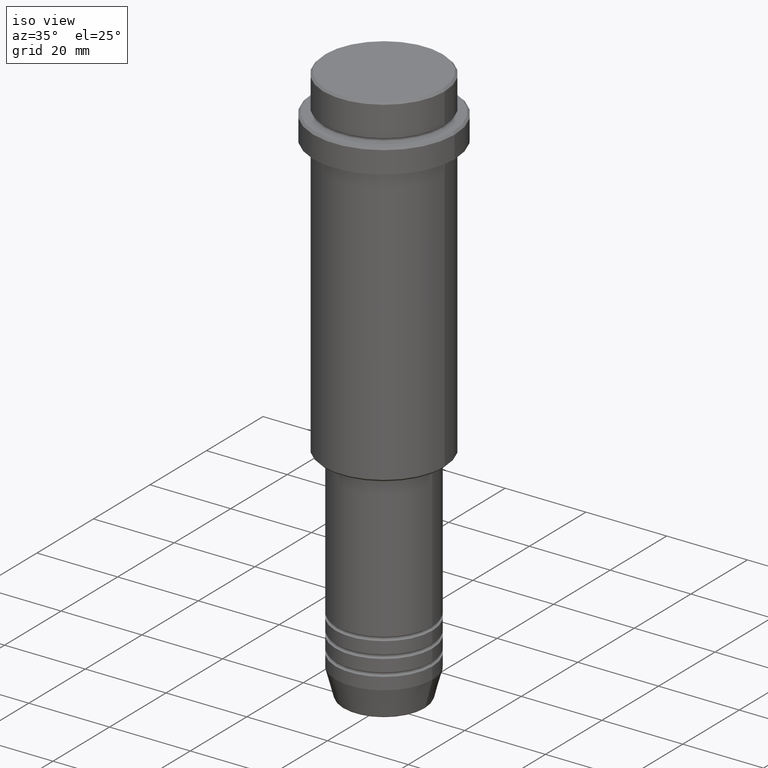
[diagram: clean part render]
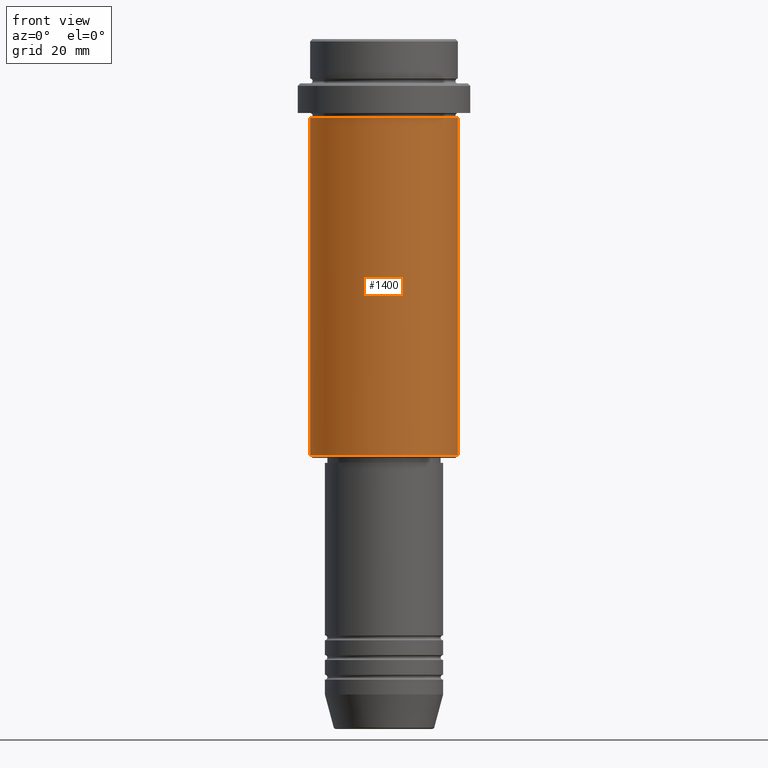
[diagram: tour spotlight — one face highlighted and labeled with its STEP entity id]
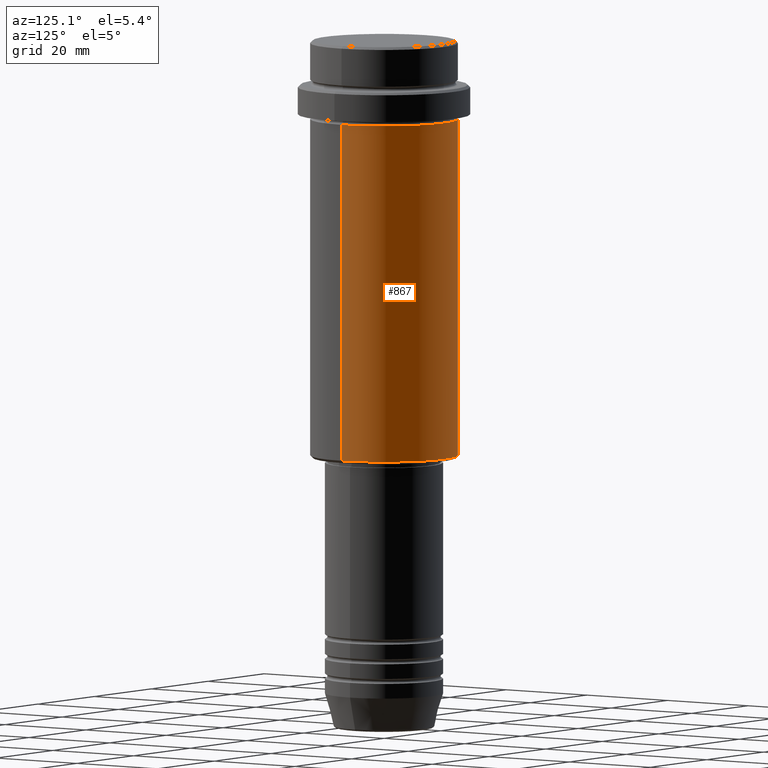
[diagram: tour spotlight — one face highlighted and labeled with its STEP entity id]
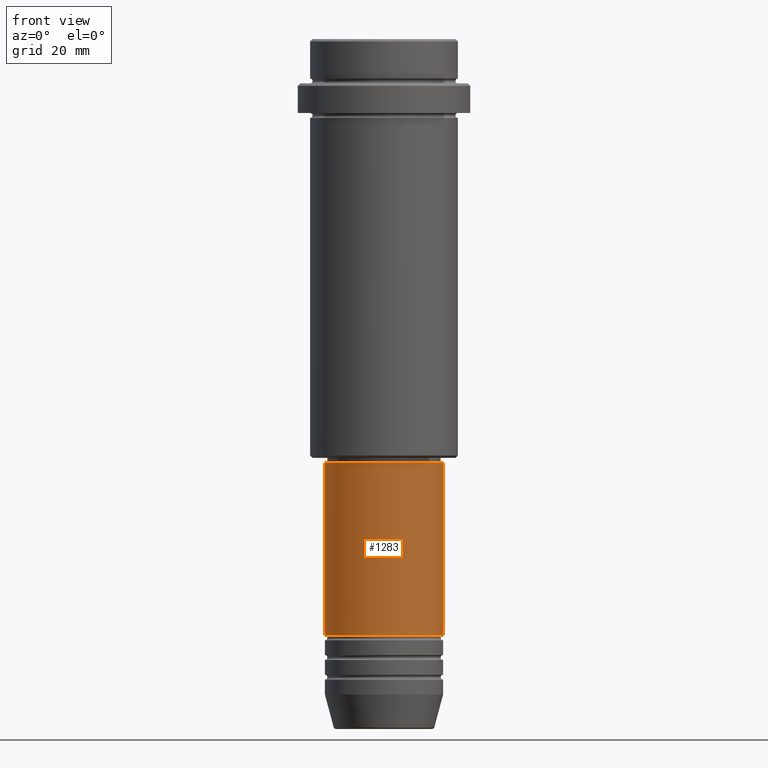
[diagram: tour spotlight — one face highlighted and labeled with its STEP entity id]
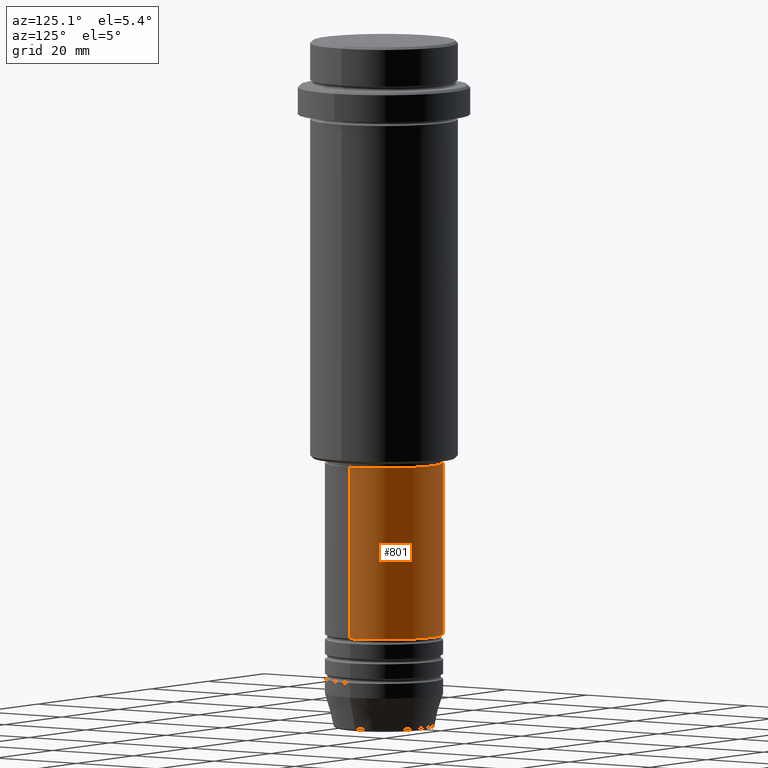
[diagram: tour spotlight — one face highlighted and labeled with its STEP entity id]
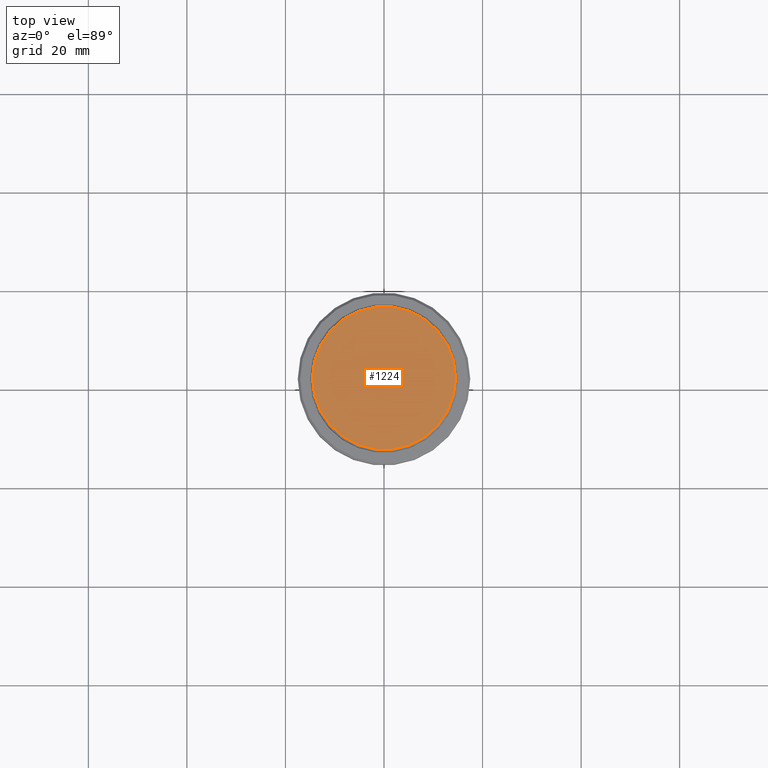
[diagram: tour spotlight — one face highlighted and labeled with its STEP entity id]
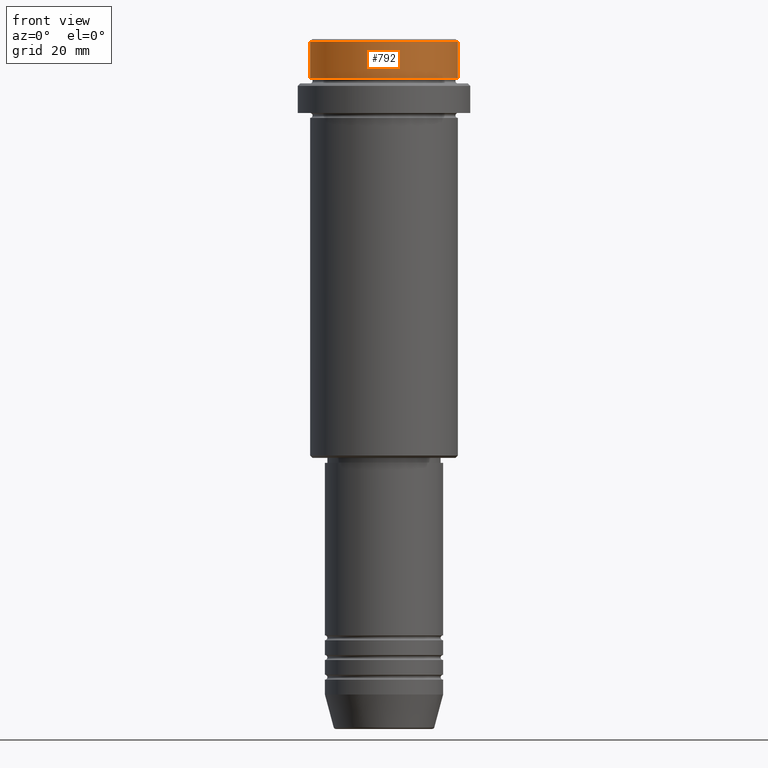
[diagram: tour spotlight — one face highlighted and labeled with its STEP entity id]
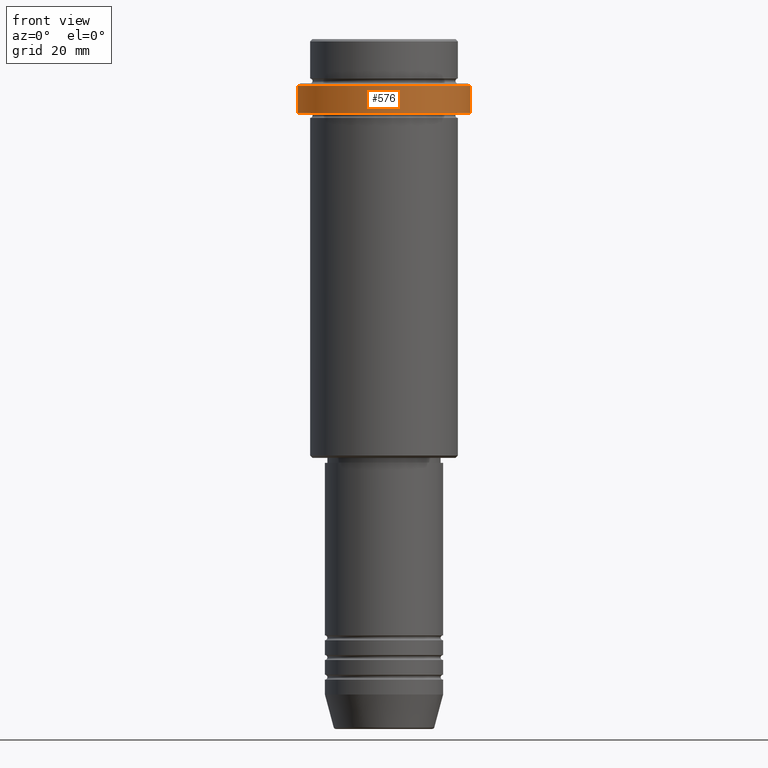
[diagram: tour spotlight — one face highlighted and labeled with its STEP entity id]
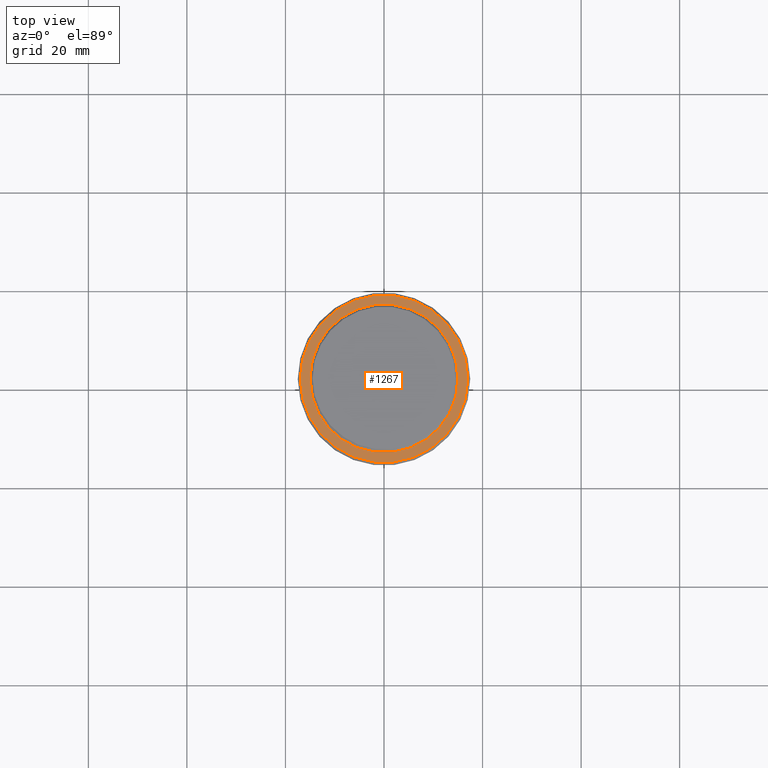
[diagram: tour spotlight — one face highlighted and labeled with its STEP entity id]
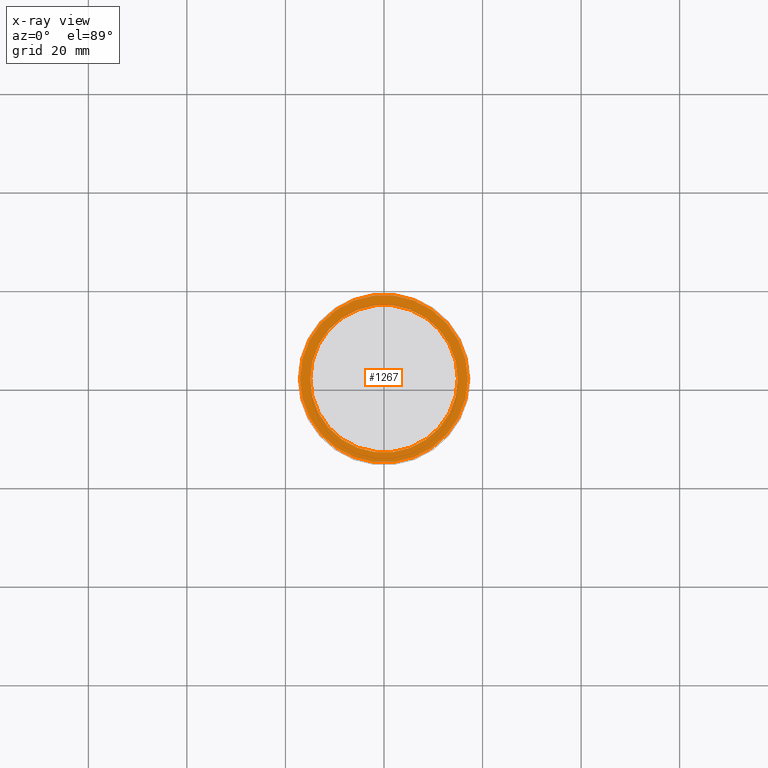
[diagram: x-ray of the same camera — body ghosted, this tour face saturated]
A machine part: a face-by-face anatomy tour. The part has 52 B-rep faces; the first image is the clean iso view, then the 8 largest visible faces are spotlighted one at a time (largest first), each with its STEP entity span.

Face 1 — front view, entity #1400. In plain terms, the highlighted cylindrical surface (partial cylindrical patch) has radius 15 mm, axis along (-0, -0, 1).
Definition (entity closure, byte-faithful):
#32 = VERTEX_POINT ( 'NONE', #945 ) ;
#52 = CYLINDRICAL_SURFACE ( 'NONE', #334, 15.00000000000000000 ) ;
#127 = CIRCLE ( 'NONE', #542, 15.00000000000000178 ) ;
#144 = VERTEX_POINT ( 'NONE', #1383 ) ;
#172 = LINE ( 'NONE', #807, #635 ) ;
#189 = DIRECTION ( 'NONE',  ( -0.000000000000000000, -0.000000000000000000, 1.000000000000000000 ) ) ;
#198 = ORIENTED_EDGE ( 'NONE', *, *, #920, .T. ) ;
#214 = ORIENTED_EDGE ( 'NONE', *, *, #495, .F. ) ;
#282 = LINE ( 'NONE', #627, #660 ) ;
#285 = CIRCLE ( 'NONE', #882, 15.00000000000000000 ) ;
#334 = AXIS2_PLACEMENT_3D ( 'NONE', #1378, #514, #519 ) ;
#372 = FACE_OUTER_BOUND ( 'NONE', #412, .T. ) ;
#407 = CARTESIAN_POINT ( 'NONE',  ( 0.000000000000000000, 0.000000000000000000, -84.50000000000001421 ) ) ;
#412 = EDGE_LOOP ( 'NONE', ( #1004, #698, #198, #214 ) ) ;
#422 = EDGE_CURVE ( 'NONE', #1173, #32, #172, .T. ) ;
#458 = DIRECTION ( 'NONE',  ( -1.000000000000000000, 0.000000000000000000, 0.000000000000000000 ) ) ;
#495 = EDGE_CURVE ( 'NONE', #32, #144, #127, .T. ) ;
#514 = DIRECTION ( 'NONE',  ( -0.000000000000000000, -0.000000000000000000, 1.000000000000000000 ) ) ;
#519 = DIRECTION ( 'NONE',  ( 1.000000000000000000, 0.000000000000000000, 0.000000000000000000 ) ) ;
#533 = VERTEX_POINT ( 'NONE', #1374 ) ;
#542 = AXIS2_PLACEMENT_3D ( 'NONE', #1379, #1154, #1051 ) ;
#584 = EDGE_CURVE ( 'NONE', #1173, #533, #285, .T. ) ;
#627 = CARTESIAN_POINT ( 'NONE',  ( 15.00000000000000000, 0.000000000000000000, 0.000000000000000000 ) ) ;
#635 = VECTOR ( 'NONE', #950, 1000.000000000000000 ) ;
#660 = VECTOR ( 'NONE', #189, 1000.000000000000000 ) ;
#698 = ORIENTED_EDGE ( 'NONE', *, *, #584, .T. ) ;
#807 = CARTESIAN_POINT ( 'NONE',  ( -15.00000000000000000, 1.836970198721029589E-15, 0.000000000000000000 ) ) ;
#882 = AXIS2_PLACEMENT_3D ( 'NONE', #407, #1101, #458 ) ;
#920 = EDGE_CURVE ( 'NONE', #533, #144, #282, .T. ) ;
#945 = CARTESIAN_POINT ( 'NONE',  ( -15.00000000000000355, 1.836970198721029983E-15, -16.00000000000000000 ) ) ;
#950 = DIRECTION ( 'NONE',  ( -0.000000000000000000, -0.000000000000000000, 1.000000000000000000 ) ) ;
#1004 = ORIENTED_EDGE ( 'NONE', *, *, #422, .F. ) ;
#1051 = DIRECTION ( 'NONE',  ( 1.000000000000000000, 0.000000000000000000, 0.000000000000000000 ) ) ;
#1101 = DIRECTION ( 'NONE',  ( -0.000000000000000000, -0.000000000000000000, 1.000000000000000000 ) ) ;
#1154 = DIRECTION ( 'NONE',  ( -0.000000000000000000, -0.000000000000000000, 1.000000000000000000 ) ) ;
#1173 = VERTEX_POINT ( 'NONE', #1408 ) ;
#1374 = CARTESIAN_POINT ( 'NONE',  ( 15.00000000000000000, 0.000000000000000000, -84.50000000000001421 ) ) ;
#1378 = CARTESIAN_POINT ( 'NONE',  ( 0.000000000000000000, 0.000000000000000000, 0.000000000000000000 ) ) ;
#1379 = CARTESIAN_POINT ( 'NONE',  ( 0.000000000000000000, 0.000000000000000000, -16.00000000000000000 ) ) ;
#1383 = CARTESIAN_POINT ( 'NONE',  ( 15.00000000000000178, 0.000000000000000000, -16.00000000000000000 ) ) ;
#1400 = ADVANCED_FACE ( 'NONE', ( #372 ), #52, .T. ) ;
#1408 = CARTESIAN_POINT ( 'NONE',  ( -15.00000000000000000, 1.836970198721029589E-15, -84.50000000000001421 ) ) ;

Face 2 — auxiliary view, entity #867. In plain terms, the highlighted cylindrical surface (partial cylindrical patch) has radius 15 mm, axis along (-0, -0, 1).
Definition (entity closure, byte-faithful):
#32 = VERTEX_POINT ( 'NONE', #945 ) ;
#81 = DIRECTION ( 'NONE',  ( 1.000000000000000000, 0.000000000000000000, 0.000000000000000000 ) ) ;
#144 = VERTEX_POINT ( 'NONE', #1383 ) ;
#157 = CARTESIAN_POINT ( 'NONE',  ( 0.000000000000000000, 0.000000000000000000, -84.50000000000001421 ) ) ;
#172 = LINE ( 'NONE', #807, #635 ) ;
#189 = DIRECTION ( 'NONE',  ( -0.000000000000000000, -0.000000000000000000, 1.000000000000000000 ) ) ;
#275 = ORIENTED_EDGE ( 'NONE', *, *, #622, .F. ) ;
#282 = LINE ( 'NONE', #627, #660 ) ;
#418 = DIRECTION ( 'NONE',  ( 1.000000000000000000, 0.000000000000000000, 0.000000000000000000 ) ) ;
#422 = EDGE_CURVE ( 'NONE', #1173, #32, #172, .T. ) ;
#486 = FACE_OUTER_BOUND ( 'NONE', #1178, .T. ) ;
#533 = VERTEX_POINT ( 'NONE', #1374 ) ;
#622 = EDGE_CURVE ( 'NONE', #144, #32, #881, .T. ) ;
#627 = CARTESIAN_POINT ( 'NONE',  ( 15.00000000000000000, 0.000000000000000000, 0.000000000000000000 ) ) ;
#635 = VECTOR ( 'NONE', #950, 1000.000000000000000 ) ;
#660 = VECTOR ( 'NONE', #189, 1000.000000000000000 ) ;
#688 = DIRECTION ( 'NONE',  ( -0.000000000000000000, -0.000000000000000000, 1.000000000000000000 ) ) ;
#708 = AXIS2_PLACEMENT_3D ( 'NONE', #1059, #750, #418 ) ;
#746 = EDGE_CURVE ( 'NONE', #533, #1173, #955, .T. ) ;
#750 = DIRECTION ( 'NONE',  ( -0.000000000000000000, -0.000000000000000000, 1.000000000000000000 ) ) ;
#807 = CARTESIAN_POINT ( 'NONE',  ( -15.00000000000000000, 1.836970198721029589E-15, 0.000000000000000000 ) ) ;
#867 = ADVANCED_FACE ( 'NONE', ( #486 ), #1350, .T. ) ;
#881 = CIRCLE ( 'NONE', #1110, 15.00000000000000178 ) ;
#920 = EDGE_CURVE ( 'NONE', #533, #144, #282, .T. ) ;
#945 = CARTESIAN_POINT ( 'NONE',  ( -15.00000000000000355, 1.836970198721029983E-15, -16.00000000000000000 ) ) ;
#950 = DIRECTION ( 'NONE',  ( -0.000000000000000000, -0.000000000000000000, 1.000000000000000000 ) ) ;
#955 = CIRCLE ( 'NONE', #1131, 15.00000000000000000 ) ;
#1014 = ORIENTED_EDGE ( 'NONE', *, *, #746, .T. ) ;
#1026 = ORIENTED_EDGE ( 'NONE', *, *, #422, .T. ) ;
#1059 = CARTESIAN_POINT ( 'NONE',  ( 0.000000000000000000, 0.000000000000000000, 0.000000000000000000 ) ) ;
#1082 = ORIENTED_EDGE ( 'NONE', *, *, #920, .F. ) ;
#1110 = AXIS2_PLACEMENT_3D ( 'NONE', #1391, #1323, #81 ) ;
#1131 = AXIS2_PLACEMENT_3D ( 'NONE', #157, #688, #1228 ) ;
#1173 = VERTEX_POINT ( 'NONE', #1408 ) ;
#1178 = EDGE_LOOP ( 'NONE', ( #1014, #1026, #275, #1082 ) ) ;
#1228 = DIRECTION ( 'NONE',  ( -1.000000000000000000, 0.000000000000000000, 0.000000000000000000 ) ) ;
#1323 = DIRECTION ( 'NONE',  ( -0.000000000000000000, -0.000000000000000000, 1.000000000000000000 ) ) ;
#1350 = CYLINDRICAL_SURFACE ( 'NONE', #708, 15.00000000000000000 ) ;
#1374 = CARTESIAN_POINT ( 'NONE',  ( 15.00000000000000000, 0.000000000000000000, -84.50000000000001421 ) ) ;
#1383 = CARTESIAN_POINT ( 'NONE',  ( 15.00000000000000178, 0.000000000000000000, -16.00000000000000000 ) ) ;
#1391 = CARTESIAN_POINT ( 'NONE',  ( 0.000000000000000000, 0.000000000000000000, -16.00000000000000000 ) ) ;
#1408 = CARTESIAN_POINT ( 'NONE',  ( -15.00000000000000000, 1.836970198721029589E-15, -84.50000000000001421 ) ) ;

Face 3 — front view, entity #1283. In plain terms, the highlighted cylindrical surface (partial cylindrical patch) has radius 12 mm, axis along (-0, -0, 1).
Definition (entity closure, byte-faithful):
#135 = DIRECTION ( 'NONE',  ( 1.000000000000000000, 0.000000000000000000, 0.000000000000000000 ) ) ;
#289 = CIRCLE ( 'NONE', #1089, 12.00000000000000000 ) ;
#321 = DIRECTION ( 'NONE',  ( 1.000000000000000000, 0.000000000000000000, 0.000000000000000000 ) ) ;
#353 = FACE_OUTER_BOUND ( 'NONE', #538, .T. ) ;
#359 = AXIS2_PLACEMENT_3D ( 'NONE', #797, #473, #135 ) ;
#366 = DIRECTION ( 'NONE',  ( -0.000000000000000000, -0.000000000000000000, 1.000000000000000000 ) ) ;
#367 = EDGE_CURVE ( 'NONE', #811, #1394, #1123, .T. ) ;
#389 = ORIENTED_EDGE ( 'NONE', *, *, #367, .T. ) ;
#397 = CARTESIAN_POINT ( 'NONE',  ( 11.99999999999999822, 0.000000000000000000, -86.00000000000001421 ) ) ;
#459 = VECTOR ( 'NONE', #1353, 1000.000000000000000 ) ;
#473 = DIRECTION ( 'NONE',  ( -0.000000000000000000, -0.000000000000000000, 1.000000000000000000 ) ) ;
#512 = VERTEX_POINT ( 'NONE', #1130 ) ;
#538 = EDGE_LOOP ( 'NONE', ( #1119, #789, #389, #727 ) ) ;
#575 = DIRECTION ( 'NONE',  ( -0.000000000000000000, -0.000000000000000000, 1.000000000000000000 ) ) ;
#585 = CARTESIAN_POINT ( 'NONE',  ( 12.00000000000000000, 0.000000000000000000, 0.000000000000000000 ) ) ;
#661 = CIRCLE ( 'NONE', #910, 11.99999999999999822 ) ;
#685 = CARTESIAN_POINT ( 'NONE',  ( -12.00000000000000000, 1.469576158976823947E-15, 0.000000000000000000 ) ) ;
#692 = DIRECTION ( 'NONE',  ( 1.000000000000000000, 0.000000000000000000, 0.000000000000000000 ) ) ;
#727 = ORIENTED_EDGE ( 'NONE', *, *, #1293, .F. ) ;
#789 = ORIENTED_EDGE ( 'NONE', *, *, #1163, .T. ) ;
#797 = CARTESIAN_POINT ( 'NONE',  ( 0.000000000000000000, 0.000000000000000000, 0.000000000000000000 ) ) ;
#809 = LINE ( 'NONE', #685, #459 ) ;
#811 = VERTEX_POINT ( 'NONE', #812 ) ;
#812 = CARTESIAN_POINT ( 'NONE',  ( 12.00000000000000000, 0.000000000000000000, -120.9999999999999005 ) ) ;
#853 = CARTESIAN_POINT ( 'NONE',  ( -12.00000000000000000, 1.469576158976823947E-15, -120.9999999999999005 ) ) ;
#910 = AXIS2_PLACEMENT_3D ( 'NONE', #1226, #575, #692 ) ;
#928 = VECTOR ( 'NONE', #366, 1000.000000000000000 ) ;
#940 = VERTEX_POINT ( 'NONE', #853 ) ;
#1089 = AXIS2_PLACEMENT_3D ( 'NONE', #1296, #1415, #321 ) ;
#1114 = CYLINDRICAL_SURFACE ( 'NONE', #359, 12.00000000000000000 ) ;
#1119 = ORIENTED_EDGE ( 'NONE', *, *, #1230, .F. ) ;
#1123 = LINE ( 'NONE', #585, #928 ) ;
#1130 = CARTESIAN_POINT ( 'NONE',  ( -11.99999999999999822, 1.469576158976823750E-15, -86.00000000000001421 ) ) ;
#1163 = EDGE_CURVE ( 'NONE', #940, #811, #289, .T. ) ;
#1226 = CARTESIAN_POINT ( 'NONE',  ( 0.000000000000000000, 0.000000000000000000, -86.00000000000001421 ) ) ;
#1230 = EDGE_CURVE ( 'NONE', #940, #512, #809, .T. ) ;
#1283 = ADVANCED_FACE ( 'NONE', ( #353 ), #1114, .T. ) ;
#1293 = EDGE_CURVE ( 'NONE', #512, #1394, #661, .T. ) ;
#1296 = CARTESIAN_POINT ( 'NONE',  ( 0.000000000000000000, 0.000000000000000000, -120.9999999999999005 ) ) ;
#1353 = DIRECTION ( 'NONE',  ( -0.000000000000000000, -0.000000000000000000, 1.000000000000000000 ) ) ;
#1394 = VERTEX_POINT ( 'NONE', #397 ) ;
#1415 = DIRECTION ( 'NONE',  ( -0.000000000000000000, -0.000000000000000000, 1.000000000000000000 ) ) ;

Face 4 — auxiliary view, entity #801. In plain terms, the highlighted cylindrical surface (partial cylindrical patch) has radius 12 mm, axis along (-0, -0, 1).
Definition (entity closure, byte-faithful):
#9 = ORIENTED_EDGE ( 'NONE', *, *, #367, .F. ) ;
#26 = DIRECTION ( 'NONE',  ( 1.000000000000000000, 0.000000000000000000, 0.000000000000000000 ) ) ;
#147 = CARTESIAN_POINT ( 'NONE',  ( 0.000000000000000000, 0.000000000000000000, 0.000000000000000000 ) ) ;
#249 = CARTESIAN_POINT ( 'NONE',  ( 0.000000000000000000, 0.000000000000000000, -120.9999999999999005 ) ) ;
#260 = CYLINDRICAL_SURFACE ( 'NONE', #287, 12.00000000000000000 ) ;
#287 = AXIS2_PLACEMENT_3D ( 'NONE', #147, #790, #1127 ) ;
#304 = AXIS2_PLACEMENT_3D ( 'NONE', #570, #333, #324 ) ;
#324 = DIRECTION ( 'NONE',  ( 1.000000000000000000, 0.000000000000000000, 0.000000000000000000 ) ) ;
#333 = DIRECTION ( 'NONE',  ( -0.000000000000000000, -0.000000000000000000, 1.000000000000000000 ) ) ;
#361 = EDGE_CURVE ( 'NONE', #811, #940, #840, .T. ) ;
#366 = DIRECTION ( 'NONE',  ( -0.000000000000000000, -0.000000000000000000, 1.000000000000000000 ) ) ;
#367 = EDGE_CURVE ( 'NONE', #811, #1394, #1123, .T. ) ;
#397 = CARTESIAN_POINT ( 'NONE',  ( 11.99999999999999822, 0.000000000000000000, -86.00000000000001421 ) ) ;
#459 = VECTOR ( 'NONE', #1353, 1000.000000000000000 ) ;
#477 = FACE_OUTER_BOUND ( 'NONE', #737, .T. ) ;
#499 = ORIENTED_EDGE ( 'NONE', *, *, #646, .F. ) ;
#512 = VERTEX_POINT ( 'NONE', #1130 ) ;
#570 = CARTESIAN_POINT ( 'NONE',  ( 0.000000000000000000, 0.000000000000000000, -86.00000000000001421 ) ) ;
#585 = CARTESIAN_POINT ( 'NONE',  ( 12.00000000000000000, 0.000000000000000000, 0.000000000000000000 ) ) ;
#646 = EDGE_CURVE ( 'NONE', #1394, #512, #1243, .T. ) ;
#685 = CARTESIAN_POINT ( 'NONE',  ( -12.00000000000000000, 1.469576158976823947E-15, 0.000000000000000000 ) ) ;
#737 = EDGE_LOOP ( 'NONE', ( #986, #1349, #499, #9 ) ) ;
#752 = AXIS2_PLACEMENT_3D ( 'NONE', #249, #781, #26 ) ;
#781 = DIRECTION ( 'NONE',  ( -0.000000000000000000, -0.000000000000000000, 1.000000000000000000 ) ) ;
#790 = DIRECTION ( 'NONE',  ( -0.000000000000000000, -0.000000000000000000, 1.000000000000000000 ) ) ;
#801 = ADVANCED_FACE ( 'NONE', ( #477 ), #260, .T. ) ;
#809 = LINE ( 'NONE', #685, #459 ) ;
#811 = VERTEX_POINT ( 'NONE', #812 ) ;
#812 = CARTESIAN_POINT ( 'NONE',  ( 12.00000000000000000, 0.000000000000000000, -120.9999999999999005 ) ) ;
#840 = CIRCLE ( 'NONE', #752, 12.00000000000000000 ) ;
#853 = CARTESIAN_POINT ( 'NONE',  ( -12.00000000000000000, 1.469576158976823947E-15, -120.9999999999999005 ) ) ;
#928 = VECTOR ( 'NONE', #366, 1000.000000000000000 ) ;
#940 = VERTEX_POINT ( 'NONE', #853 ) ;
#986 = ORIENTED_EDGE ( 'NONE', *, *, #361, .T. ) ;
#1123 = LINE ( 'NONE', #585, #928 ) ;
#1127 = DIRECTION ( 'NONE',  ( 1.000000000000000000, 0.000000000000000000, 0.000000000000000000 ) ) ;
#1130 = CARTESIAN_POINT ( 'NONE',  ( -11.99999999999999822, 1.469576158976823750E-15, -86.00000000000001421 ) ) ;
#1230 = EDGE_CURVE ( 'NONE', #940, #512, #809, .T. ) ;
#1243 = CIRCLE ( 'NONE', #304, 11.99999999999999822 ) ;
#1349 = ORIENTED_EDGE ( 'NONE', *, *, #1230, .T. ) ;
#1353 = DIRECTION ( 'NONE',  ( -0.000000000000000000, -0.000000000000000000, 1.000000000000000000 ) ) ;
#1394 = VERTEX_POINT ( 'NONE', #397 ) ;

Face 5 — top view, entity #1224. In plain terms, the highlighted planar face has unit normal (0, -0, 1).
Definition (entity closure, byte-faithful):
#43 = FACE_OUTER_BOUND ( 'NONE', #1401, .T. ) ;
#96 = DIRECTION ( 'NONE',  ( 1.000000000000000000, 0.000000000000000000, 0.000000000000000000 ) ) ;
#217 = EDGE_CURVE ( 'NONE', #1185, #558, #1063, .T. ) ;
#225 = CARTESIAN_POINT ( 'NONE',  ( -14.49999999999999645, 0.000000000000000000, 0.000000000000000000 ) ) ;
#251 = DIRECTION ( 'NONE',  ( 0.000000000000000000, -0.000000000000000000, 1.000000000000000000 ) ) ;
#421 = DIRECTION ( 'NONE',  ( 1.000000000000000000, 0.000000000000000000, 0.000000000000000000 ) ) ;
#504 = CIRCLE ( 'NONE', #1067, 14.49999999999999645 ) ;
#535 = ORIENTED_EDGE ( 'NONE', *, *, #1045, .T. ) ;
#558 = VERTEX_POINT ( 'NONE', #712 ) ;
#599 = DIRECTION ( 'NONE',  ( 1.000000000000000000, 0.000000000000000000, 0.000000000000000000 ) ) ;
#607 = ORIENTED_EDGE ( 'NONE', *, *, #217, .T. ) ;
#712 = CARTESIAN_POINT ( 'NONE',  ( 14.49999999999999645, 1.806354028742345802E-15, 0.000000000000000000 ) ) ;
#762 = DIRECTION ( 'NONE',  ( -0.000000000000000000, -0.000000000000000000, 1.000000000000000000 ) ) ;
#769 = DIRECTION ( 'NONE',  ( -0.000000000000000000, -0.000000000000000000, 1.000000000000000000 ) ) ;
#804 = PLANE ( 'NONE',  #1001 ) ;
#876 = CARTESIAN_POINT ( 'NONE',  ( 0.000000000000000000, 0.000000000000000000, 0.000000000000000000 ) ) ;
#965 = CARTESIAN_POINT ( 'NONE',  ( 0.000000000000000000, 0.000000000000000000, 0.000000000000000000 ) ) ;
#1001 = AXIS2_PLACEMENT_3D ( 'NONE', #1105, #251, #599 ) ;
#1045 = EDGE_CURVE ( 'NONE', #558, #1185, #504, .T. ) ;
#1063 = CIRCLE ( 'NONE', #1382, 14.49999999999999645 ) ;
#1067 = AXIS2_PLACEMENT_3D ( 'NONE', #876, #769, #96 ) ;
#1105 = CARTESIAN_POINT ( 'NONE',  ( 0.000000000000000000, 0.000000000000000000, 0.000000000000000000 ) ) ;
#1185 = VERTEX_POINT ( 'NONE', #225 ) ;
#1224 = ADVANCED_FACE ( 'NONE', ( #43 ), #804, .T. ) ;
#1382 = AXIS2_PLACEMENT_3D ( 'NONE', #965, #762, #421 ) ;
#1401 = EDGE_LOOP ( 'NONE', ( #607, #535 ) ) ;

Face 6 — front view, entity #792. In plain terms, the highlighted cylindrical surface (partial cylindrical patch) has radius 15 mm, axis along (-0, -0, 1).
Definition (entity closure, byte-faithful):
#25 = CARTESIAN_POINT ( 'NONE',  ( 0.000000000000000000, 0.000000000000000000, 0.000000000000000000 ) ) ;
#95 = ORIENTED_EDGE ( 'NONE', *, *, #1084, .F. ) ;
#102 = CARTESIAN_POINT ( 'NONE',  ( 0.000000000000000000, 0.000000000000000000, -7.999999999999998224 ) ) ;
#158 = EDGE_CURVE ( 'NONE', #485, #395, #713, .T. ) ;
#222 = AXIS2_PLACEMENT_3D ( 'NONE', #382, #1259, #1242 ) ;
#223 = CARTESIAN_POINT ( 'NONE',  ( 15.00000000000000000, 0.000000000000000000, -0.4999999999999970024 ) ) ;
#239 = VECTOR ( 'NONE', #815, 1000.000000000000000 ) ;
#270 = DIRECTION ( 'NONE',  ( 1.000000000000000000, 0.000000000000000000, 0.000000000000000000 ) ) ;
#306 = VECTOR ( 'NONE', #764, 1000.000000000000000 ) ;
#382 = CARTESIAN_POINT ( 'NONE',  ( 0.000000000000000000, 0.000000000000000000, -0.4999999999999970024 ) ) ;
#395 = VERTEX_POINT ( 'NONE', #223 ) ;
#408 = AXIS2_PLACEMENT_3D ( 'NONE', #102, #440, #663 ) ;
#440 = DIRECTION ( 'NONE',  ( -0.000000000000000000, -0.000000000000000000, 1.000000000000000000 ) ) ;
#446 = VERTEX_POINT ( 'NONE', #734 ) ;
#447 = CARTESIAN_POINT ( 'NONE',  ( -15.00000000000000000, 1.836970198721029589E-15, 0.000000000000000000 ) ) ;
#485 = VERTEX_POINT ( 'NONE', #1056 ) ;
#663 = DIRECTION ( 'NONE',  ( 1.000000000000000000, 0.000000000000000000, 0.000000000000000000 ) ) ;
#686 = AXIS2_PLACEMENT_3D ( 'NONE', #25, #694, #270 ) ;
#694 = DIRECTION ( 'NONE',  ( -0.000000000000000000, -0.000000000000000000, 1.000000000000000000 ) ) ;
#713 = LINE ( 'NONE', #921, #239 ) ;
#734 = CARTESIAN_POINT ( 'NONE',  ( -15.00000000000000000, 1.836970198721029589E-15, -7.999999999999998224 ) ) ;
#764 = DIRECTION ( 'NONE',  ( -0.000000000000000000, -0.000000000000000000, 1.000000000000000000 ) ) ;
#792 = ADVANCED_FACE ( 'NONE', ( #1012 ), #820, .T. ) ;
#815 = DIRECTION ( 'NONE',  ( -0.000000000000000000, -0.000000000000000000, 1.000000000000000000 ) ) ;
#816 = CARTESIAN_POINT ( 'NONE',  ( -15.00000000000000000, 1.836970198721029589E-15, -0.4999999999999970024 ) ) ;
#820 = CYLINDRICAL_SURFACE ( 'NONE', #686, 15.00000000000000000 ) ;
#875 = ORIENTED_EDGE ( 'NONE', *, *, #1028, .T. ) ;
#892 = EDGE_LOOP ( 'NONE', ( #95, #875, #1124, #1262 ) ) ;
#921 = CARTESIAN_POINT ( 'NONE',  ( 15.00000000000000000, 0.000000000000000000, 0.000000000000000000 ) ) ;
#936 = CIRCLE ( 'NONE', #222, 15.00000000000000000 ) ;
#1012 = FACE_OUTER_BOUND ( 'NONE', #892, .T. ) ;
#1028 = EDGE_CURVE ( 'NONE', #446, #485, #1360, .T. ) ;
#1056 = CARTESIAN_POINT ( 'NONE',  ( 15.00000000000000000, 0.000000000000000000, -7.999999999999998224 ) ) ;
#1084 = EDGE_CURVE ( 'NONE', #446, #1233, #1093, .T. ) ;
#1093 = LINE ( 'NONE', #447, #306 ) ;
#1124 = ORIENTED_EDGE ( 'NONE', *, *, #158, .T. ) ;
#1233 = VERTEX_POINT ( 'NONE', #816 ) ;
#1242 = DIRECTION ( 'NONE',  ( 1.000000000000000000, 0.000000000000000000, 0.000000000000000000 ) ) ;
#1259 = DIRECTION ( 'NONE',  ( 0.000000000000000000, 0.000000000000000000, -1.000000000000000000 ) ) ;
#1262 = ORIENTED_EDGE ( 'NONE', *, *, #1371, .T. ) ;
#1360 = CIRCLE ( 'NONE', #408, 15.00000000000000000 ) ;
#1371 = EDGE_CURVE ( 'NONE', #395, #1233, #936, .T. ) ;

Face 7 — front view, entity #576. In plain terms, the highlighted cylindrical surface (partial cylindrical patch) has radius 17.5 mm, axis along (-0, -0, 1).
Definition (entity closure, byte-faithful):
#6 = DIRECTION ( 'NONE',  ( 0.000000000000000000, 0.000000000000000000, -1.000000000000000000 ) ) ;
#14 = DIRECTION ( 'NONE',  ( 1.000000000000000000, 0.000000000000000000, 0.000000000000000000 ) ) ;
#104 = LINE ( 'NONE', #298, #657 ) ;
#126 = DIRECTION ( 'NONE',  ( -0.000000000000000000, -0.000000000000000000, 1.000000000000000000 ) ) ;
#128 = VERTEX_POINT ( 'NONE', #506 ) ;
#151 = AXIS2_PLACEMENT_3D ( 'NONE', #989, #6, #1169 ) ;
#246 = ORIENTED_EDGE ( 'NONE', *, *, #296, .T. ) ;
#296 = EDGE_CURVE ( 'NONE', #128, #1416, #104, .T. ) ;
#298 = CARTESIAN_POINT ( 'NONE',  ( 17.50000000000000000, 0.000000000000000000, 0.000000000000000000 ) ) ;
#364 = ORIENTED_EDGE ( 'NONE', *, *, #736, .T. ) ;
#384 = CIRCLE ( 'NONE', #525, 17.50000000000000000 ) ;
#448 = CARTESIAN_POINT ( 'NONE',  ( -17.50000000000000000, 2.143131898507868248E-15, 0.000000000000000000 ) ) ;
#453 = ORIENTED_EDGE ( 'NONE', *, *, #682, .F. ) ;
#475 = CIRCLE ( 'NONE', #151, 17.50000000000000000 ) ;
#506 = CARTESIAN_POINT ( 'NONE',  ( 17.50000000000000000, 0.000000000000000000, -15.00000000000000000 ) ) ;
#525 = AXIS2_PLACEMENT_3D ( 'NONE', #1030, #126, #567 ) ;
#567 = DIRECTION ( 'NONE',  ( 1.000000000000000000, 0.000000000000000000, 0.000000000000000000 ) ) ;
#576 = ADVANCED_FACE ( 'NONE', ( #679 ), #1212, .T. ) ;
#657 = VECTOR ( 'NONE', #766, 1000.000000000000000 ) ;
#673 = LINE ( 'NONE', #448, #1358 ) ;
#679 = FACE_OUTER_BOUND ( 'NONE', #1161, .T. ) ;
#682 = EDGE_CURVE ( 'NONE', #1038, #1113, #673, .T. ) ;
#736 = EDGE_CURVE ( 'NONE', #1416, #1113, #475, .T. ) ;
#766 = DIRECTION ( 'NONE',  ( -0.000000000000000000, -0.000000000000000000, 1.000000000000000000 ) ) ;
#795 = AXIS2_PLACEMENT_3D ( 'NONE', #1313, #964, #14 ) ;
#844 = DIRECTION ( 'NONE',  ( -0.000000000000000000, -0.000000000000000000, 1.000000000000000000 ) ) ;
#925 = CARTESIAN_POINT ( 'NONE',  ( 17.50000000000000000, 0.000000000000000000, -9.500000000000000000 ) ) ;
#964 = DIRECTION ( 'NONE',  ( -0.000000000000000000, -0.000000000000000000, 1.000000000000000000 ) ) ;
#989 = CARTESIAN_POINT ( 'NONE',  ( 0.000000000000000000, 0.000000000000000000, -9.500000000000000000 ) ) ;
#1030 = CARTESIAN_POINT ( 'NONE',  ( 0.000000000000000000, 0.000000000000000000, -15.00000000000000000 ) ) ;
#1038 = VERTEX_POINT ( 'NONE', #1083 ) ;
#1083 = CARTESIAN_POINT ( 'NONE',  ( -17.50000000000000000, 2.143131898507868248E-15, -15.00000000000000000 ) ) ;
#1113 = VERTEX_POINT ( 'NONE', #1287 ) ;
#1161 = EDGE_LOOP ( 'NONE', ( #453, #1414, #246, #364 ) ) ;
#1169 = DIRECTION ( 'NONE',  ( 1.000000000000000000, 0.000000000000000000, 0.000000000000000000 ) ) ;
#1212 = CYLINDRICAL_SURFACE ( 'NONE', #795, 17.50000000000000000 ) ;
#1252 = EDGE_CURVE ( 'NONE', #1038, #128, #384, .T. ) ;
#1287 = CARTESIAN_POINT ( 'NONE',  ( -17.50000000000000000, 2.143131898507868248E-15, -9.500000000000000000 ) ) ;
#1313 = CARTESIAN_POINT ( 'NONE',  ( 0.000000000000000000, 0.000000000000000000, 0.000000000000000000 ) ) ;
#1358 = VECTOR ( 'NONE', #844, 1000.000000000000000 ) ;
#1414 = ORIENTED_EDGE ( 'NONE', *, *, #1252, .T. ) ;
#1416 = VERTEX_POINT ( 'NONE', #925 ) ;

Face 8 — top view, entity #1267. An x-ray twin of the same camera follows (body ghosted, this face saturated) — the face is partly hidden behind the body. In plain terms, the highlighted planar face has unit normal (0, -0, 1).
Definition (entity closure, byte-faithful):
#27 = ORIENTED_EDGE ( 'NONE', *, *, #1354, .T. ) ;
#39 = AXIS2_PLACEMENT_3D ( 'NONE', #1159, #73, #291 ) ;
#48 = CARTESIAN_POINT ( 'NONE',  ( 0.000000000000000000, 0.000000000000000000, -9.000000000000000000 ) ) ;
#49 = FACE_BOUND ( 'NONE', #461, .T. ) ;
#64 = DIRECTION ( 'NONE',  ( 1.000000000000000000, 0.000000000000000000, 0.000000000000000000 ) ) ;
#69 = CARTESIAN_POINT ( 'NONE',  ( -14.99999999999999289, 1.836970198721028800E-15, -9.000000000000000000 ) ) ;
#73 = DIRECTION ( 'NONE',  ( -0.000000000000000000, -0.000000000000000000, 1.000000000000000000 ) ) ;
#80 = DIRECTION ( 'NONE',  ( 0.000000000000000000, 0.000000000000000000, -1.000000000000000000 ) ) ;
#123 = EDGE_CURVE ( 'NONE', #476, #975, #236, .T. ) ;
#131 = CIRCLE ( 'NONE', #154, 14.99999999999999289 ) ;
#154 = AXIS2_PLACEMENT_3D ( 'NONE', #823, #80, #629 ) ;
#165 = DIRECTION ( 'NONE',  ( -0.000000000000000000, -0.000000000000000000, 1.000000000000000000 ) ) ;
#215 = DIRECTION ( 'NONE',  ( 0.000000000000000000, 0.000000000000000000, -1.000000000000000000 ) ) ;
#236 = CIRCLE ( 'NONE', #1108, 17.00000000000001421 ) ;
#264 = CIRCLE ( 'NONE', #39, 17.00000000000001421 ) ;
#291 = DIRECTION ( 'NONE',  ( 1.000000000000000000, 0.000000000000000000, 0.000000000000000000 ) ) ;
#346 = DIRECTION ( 'NONE',  ( 1.000000000000000000, 0.000000000000000000, 0.000000000000000000 ) ) ;
#432 = AXIS2_PLACEMENT_3D ( 'NONE', #1326, #697, #346 ) ;
#461 = EDGE_LOOP ( 'NONE', ( #27, #1216 ) ) ;
#462 = FACE_OUTER_BOUND ( 'NONE', #1015, .T. ) ;
#476 = VERTEX_POINT ( 'NONE', #618 ) ;
#606 = CARTESIAN_POINT ( 'NONE',  ( 14.99999999999999289, 0.000000000000000000, -9.000000000000000000 ) ) ;
#618 = CARTESIAN_POINT ( 'NONE',  ( 17.00000000000001421, 2.112515728529185250E-15, -9.000000000000000000 ) ) ;
#629 = DIRECTION ( 'NONE',  ( 1.000000000000000000, 0.000000000000000000, 0.000000000000000000 ) ) ;
#697 = DIRECTION ( 'NONE',  ( 0.000000000000000000, -0.000000000000000000, 1.000000000000000000 ) ) ;
#823 = CARTESIAN_POINT ( 'NONE',  ( 0.000000000000000000, 0.000000000000000000, -9.000000000000000000 ) ) ;
#885 = ORIENTED_EDGE ( 'NONE', *, *, #1002, .T. ) ;
#893 = PLANE ( 'NONE',  #432 ) ;
#932 = AXIS2_PLACEMENT_3D ( 'NONE', #1184, #215, #1320 ) ;
#941 = CARTESIAN_POINT ( 'NONE',  ( -17.00000000000001421, 0.000000000000000000, -9.000000000000000000 ) ) ;
#975 = VERTEX_POINT ( 'NONE', #941 ) ;
#999 = CIRCLE ( 'NONE', #932, 14.99999999999999289 ) ;
#1002 = EDGE_CURVE ( 'NONE', #975, #476, #264, .T. ) ;
#1015 = EDGE_LOOP ( 'NONE', ( #885, #1322 ) ) ;
#1077 = EDGE_CURVE ( 'NONE', #1398, #1340, #999, .T. ) ;
#1108 = AXIS2_PLACEMENT_3D ( 'NONE', #48, #165, #64 ) ;
#1159 = CARTESIAN_POINT ( 'NONE',  ( 0.000000000000000000, 0.000000000000000000, -9.000000000000000000 ) ) ;
#1184 = CARTESIAN_POINT ( 'NONE',  ( 0.000000000000000000, 0.000000000000000000, -9.000000000000000000 ) ) ;
#1216 = ORIENTED_EDGE ( 'NONE', *, *, #1077, .T. ) ;
#1267 = ADVANCED_FACE ( 'NONE', ( #462, #49 ), #893, .T. ) ;
#1320 = DIRECTION ( 'NONE',  ( 1.000000000000000000, 0.000000000000000000, 0.000000000000000000 ) ) ;
#1322 = ORIENTED_EDGE ( 'NONE', *, *, #123, .T. ) ;
#1326 = CARTESIAN_POINT ( 'NONE',  ( 0.000000000000000000, 14.49999999999999467, -9.000000000000000000 ) ) ;
#1340 = VERTEX_POINT ( 'NONE', #606 ) ;
#1354 = EDGE_CURVE ( 'NONE', #1340, #1398, #131, .T. ) ;
#1398 = VERTEX_POINT ( 'NONE', #69 ) ;